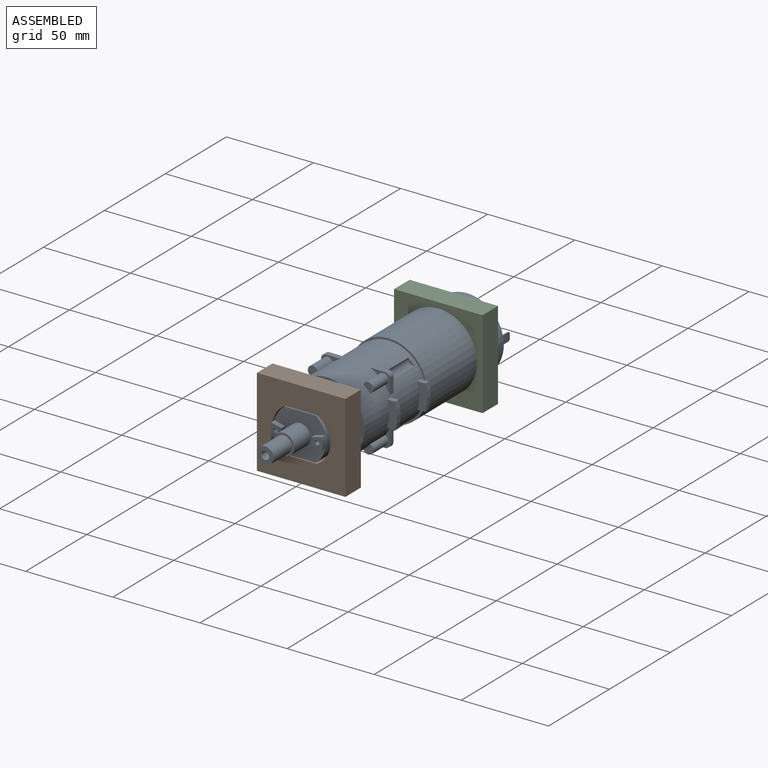
[diagram: assembled view]
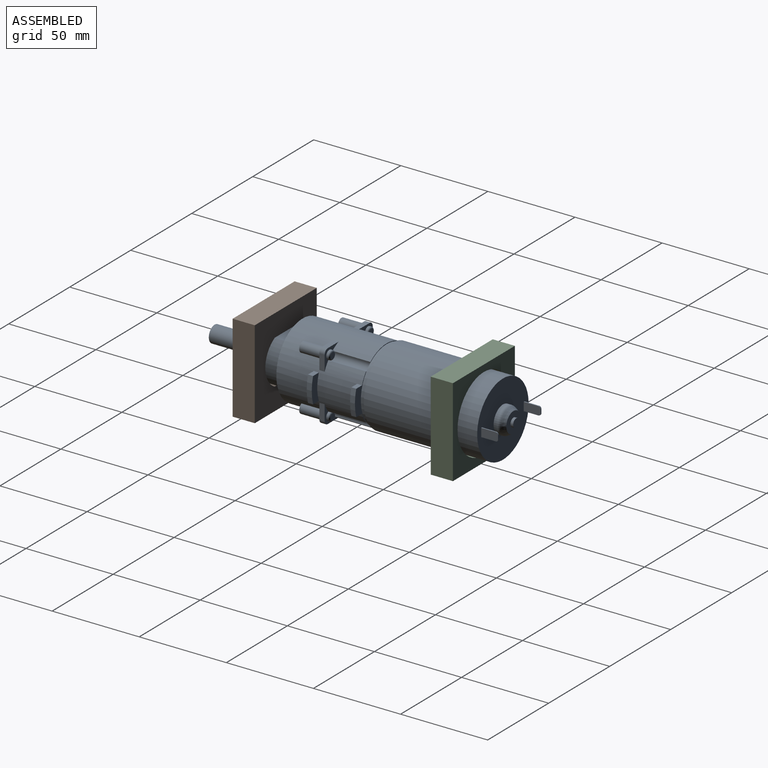
[diagram: assembled view, second angle]
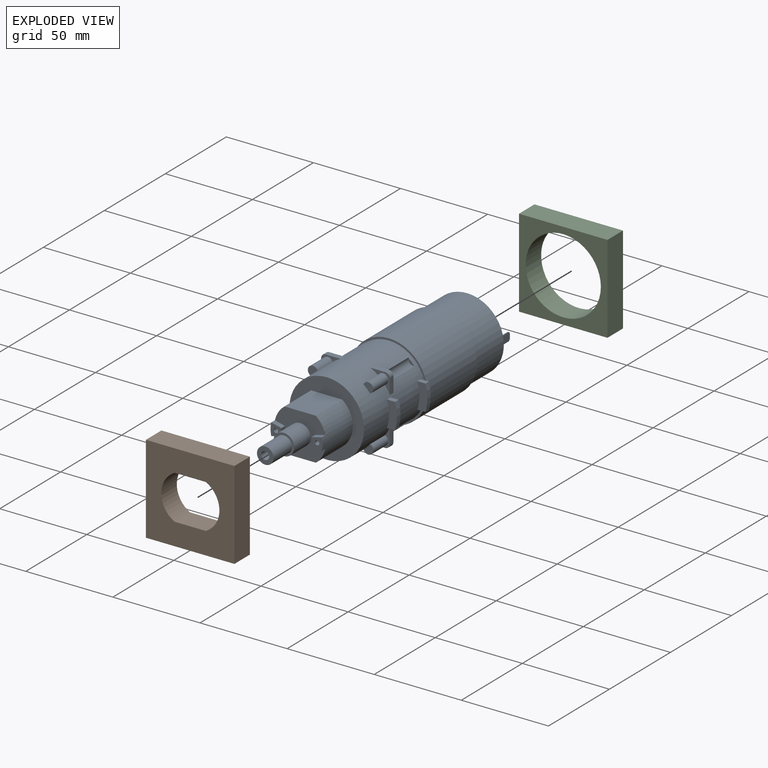
[diagram: exploded view]
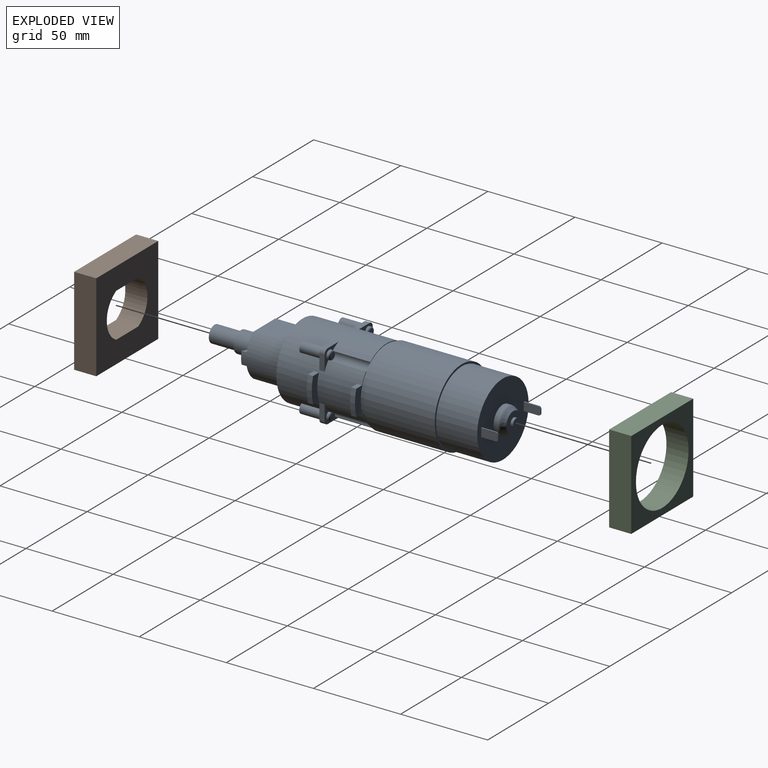
[diagram: exploded view, second angle]
ASSEMBLY  parts=3 mates=2
PART A: 124 faces, bbox 51.8x175.1x44.1 mm
  f0: plane 42.16x42.16mm, normal (0,1,0), area 1207.7mm2, adj f79,f85,f110,f111,f112,f113,f115,f116
  f1: plane 11.23x11.23mm, normal (0,1,0), area 31.5mm2, adj f7,f44,f45,f46,f96,f104
  f2: plane 11.23x11.23mm, normal (0,1,0), area 31.5mm2, adj f7,f41,f42,f43,f94,f102
  f3: plane 11.23x11.23mm, normal (0,1,0), area 31.5mm2, adj f7,f50,f51,f52,f92,f100
  f4: plane 11.23x11.23mm, normal (0,1,0), area 31.5mm2, adj f7,f47,f48,f49,f90,f98
  f5: plane 26.5x4.94mm, normal (0,1,0), area 9.8mm2, adj f7,f79,f94,f96
  f6: plane 26.5x9.43mm, normal (0,1,0), area 76.9mm2, adj f7,f71,f73,f74,f79,f90,f96
  f7: cylinder r=21.42mm len=48.26mm, axis (0,-1,0), area 5424.3mm2, adj f1,f2,f3,f4,f5,f6,f8,f9
  f8: plane 26.5x9.43mm, normal (0,1,0), area 76.9mm2, adj f7,f76,f77,f78,f79,f92,f94
  f9: plane 26.5x4.94mm, normal (0,1,0), area 9.8mm2, adj f7,f79,f90,f92
  f10: plane 11.72x11.72mm, normal (0,1,0), area 88.6mm2, adj f86,f88
  f11: plane 11.23x11.23mm, normal (0,-1,0), area 25.8mm2, adj f7,f41,f42,f43,f60
  f12: plane 11.23x11.23mm, normal (0,-1,0), area 25.8mm2, adj f7,f47,f48,f49,f58
  f13: plane 11.23x11.23mm, normal (0,-1,0), area 25.8mm2, adj f7,f50,f51,f52,f56
  f14: plane 11.23x11.23mm, normal (0,-1,0), area 25.8mm2, adj f7,f44,f45,f46,f54
  f15: plane 29.66x24.38mm, normal (0,-1,0), area 456.7mm2, adj f16,f17,f18,f19,f20,f22,f23,f24
  f16: cylinder r=6.03mm len=13.46mm, axis (0,-1,0), area 510.3mm2, adj f15,f36
  f17: cylinder r=15.49mm len=24.38mm, axis (0,-1,0), area 613.1mm2, adj f15,f18,f20,f21,f29
  f18: plane 21.84x17.98mm, normal (0,0,-1), area 392.8mm2, adj f15,f17,f19,f21
  f19: cylinder r=15.49mm len=24.38mm, axis (0,-1,0), area 613.1mm2, adj f15,f18,f20,f21,f24
  f20: plane 21.84x17.98mm, normal (0,0,1), area 392.8mm2, adj f15,f17,f19,f21
  f21: plane 42.85x42.85mm, normal (0,-1,0), area 801.9mm2, adj f7,f17,f18,f19,f20
  f22: cylinder r=8.89mm len=4.24mm, axis (0,1,0), area 12.6mm2, adj f15,f23,f25,f26
  f23: plane 5.86x2.95mm, normal (0.24,0,0.97), area 17.8mm2, adj f15,f22,f24,f26
  f24: cylinder r=14.93mm len=7.11mm, axis (0,1,0), area 21.2mm2, adj f15,f19,f23,f25,f26
  f25: plane 5.86x2.95mm, normal (0.24,0,-0.97), area 17.8mm2, adj f15,f22,f24,f26
  f26: plane 7.11x6.29mm, normal (0,-1,0), area 29.5mm2, adj f22,f23,f24,f25,f32
  f27: cylinder r=8.89mm len=4.24mm, axis (0,1,0), area 12.6mm2, adj f15,f28,f30,f31
  f28: plane 5.86x2.95mm, normal (-0.24,0,-0.97), area 17.8mm2, adj f15,f27,f29,f31
  f29: cylinder r=14.93mm len=7.11mm, axis (0,1,0), area 21.2mm2, adj f15,f17,f28,f30,f31
  f30: plane 5.86x2.95mm, normal (-0.24,0,0.97), area 17.8mm2, adj f15,f27,f29,f31
  f31: plane 7.11x6.29mm, normal (0,-1,0), area 29.5mm2, adj f27,f28,f29,f30,f34
  f32: cylinder r=1.27mm len=21.59mm, axis (0,-1,0), area 172.3mm2, adj f26,f33
  f33: plane 2.54x2.54mm, normal (0,-1,0), area 5.1mm2, adj f32
  f34: cylinder r=1.27mm len=21.59mm, axis (0,-1,0), area 172.3mm2, adj f31,f35
  f35: plane 2.54x2.54mm, normal (0,-1,0), area 5.1mm2, adj f34
  f36: plane 12.07x12.07mm, normal (0,-1,0), area 43.1mm2, adj f16,f37
  f37: cylinder r=4.76mm len=15.11mm, axis (0,1,0), area 452.2mm2, adj f36,f38
  f38: plane 9.53x9.53mm, normal (0,-1,0), area 54.8mm2, adj f37,f39
  f39: cylinder r=2.29mm len=21.59mm, axis (0,-1,0), area 310.1mm2, adj f38,f40
  f40: plane 4.57x4.57mm, normal (0,-1,0), area 16.4mm2, adj f39
  f41: cylinder r=2.54mm len=3.05mm, axis (0,-1,0), area 12.2mm2, adj f2,f11,f42,f43
  f42: plane 8.69x3.05mm, normal (0,0,-1), area 26.5mm2, adj f2,f7,f11,f41
  f43: plane 8.69x3.05mm, normal (1,0,0), area 26.5mm2, adj f2,f7,f11,f41
  f44: cylinder r=2.54mm len=3.05mm, axis (0,-1,0), area 12.2mm2, adj f1,f14,f45,f46
  f45: plane 8.69x3.05mm, normal (-1,0,0), area 26.5mm2, adj f1,f7,f14,f44
  f46: plane 8.69x3.05mm, normal (0,0,-1), area 26.5mm2, adj f1,f7,f14,f44
  f47: cylinder r=2.54mm len=3.05mm, axis (0,-1,0), area 12.2mm2, adj f4,f12,f48,f49
  f48: plane 8.69x3.05mm, normal (-1,0,0), area 26.5mm2, adj f4,f7,f12,f47
  f49: plane 8.69x3.05mm, normal (0,0,1), area 26.5mm2, adj f4,f7,f12,f47
  f50: plane 8.69x3.05mm, normal (0,0,1), area 26.5mm2, adj f3,f7,f13,f52
  f51: plane 8.69x3.05mm, normal (1,0,0), area 26.5mm2, adj f3,f7,f13,f52
  f52: cylinder r=2.54mm len=3.05mm, axis (0,-1,0), area 12.2mm2, adj f3,f13,f50,f51
  f53: plane 5.65x5.65mm, normal (0,-1,0), area 19.6mm2, adj f7,f54
  f54: cylinder r=2.92mm len=12.19mm, axis (0,1,0), area 141.8mm2, adj f7,f14,f53
  f55: plane 5.65x5.65mm, normal (0,-1,0), area 19.6mm2, adj f7,f56
  f56: cylinder r=2.92mm len=12.19mm, axis (0,1,0), area 141.8mm2, adj f7,f13,f55
  f57: plane 5.65x5.65mm, normal (0,-1,0), area 19.6mm2, adj f7,f58
  f58: cylinder r=2.92mm len=12.19mm, axis (0,1,0), area 141.8mm2, adj f7,f12,f57
  f59: plane 5.65x5.65mm, normal (0,-1,0), area 19.6mm2, adj f7,f60
  f60: cylinder r=2.92mm len=12.19mm, axis (0,1,0), area 141.8mm2, adj f7,f11,f59
  f61: cylinder r=25.91mm len=14.73mm, axis (0,1,0), area 43.6mm2, adj f62,f63,f64,f65
  f62: plane 14.73x5.79mm, normal (0,-1,0), area 67.2mm2, adj f7,f61,f64,f65
  f63: plane 14.73x5.79mm, normal (0,1,0), area 67.2mm2, adj f7,f61,f64,f65
  f64: plane 4.72x2.92mm, normal (0,0,1), area 13.8mm2, adj f7,f61,f62,f63
  f65: plane 4.72x2.92mm, normal (0,0,-1), area 13.8mm2, adj f7,f61,f62,f63
  f66: plane 4.72x2.92mm, normal (0,0,-1), area 13.8mm2, adj f7,f68,f69,f70
  f67: plane 4.72x2.92mm, normal (0,0,1), area 13.8mm2, adj f7,f68,f69,f70
  f68: plane 14.73x5.79mm, normal (0,-1,0), area 67.2mm2, adj f7,f66,f67,f70
  f69: plane 14.73x5.79mm, normal (0,1,0), area 67.2mm2, adj f7,f66,f67,f70
  f70: cylinder r=25.91mm len=14.73mm, axis (0,1,0), area 43.6mm2, adj f66,f67,f68,f69
  f71: cylinder r=25.91mm len=14.73mm, axis (0,1,0), area 41.7mm2, adj f6,f72,f73,f74
  f72: plane 14.73x5.79mm, normal (0,-1,0), area 67.2mm2, adj f7,f71,f73,f74
  f73: plane 4.72x2.79mm, normal (0,0,-1), area 13.2mm2, adj f6,f7,f71,f72
  f74: plane 4.72x2.79mm, normal (0,0,1), area 13.2mm2, adj f6,f7,f71,f72
  f75: plane 14.73x5.79mm, normal (0,-1,0), area 67.2mm2, adj f7,f76,f77,f78
  f76: plane 4.72x2.79mm, normal (0,0,1), area 13.2mm2, adj f7,f8,f75,f78
  f77: plane 4.72x2.79mm, normal (0,0,-1), area 13.2mm2, adj f7,f8,f75,f78
  f78: cylinder r=25.91mm len=14.73mm, axis (0,1,0), area 41.7mm2, adj f8,f75,f76,f77
  f79: cylinder r=21.08mm len=66.8mm, axis (0,-1,0), area 3776.9mm2, adj f0,f5,f6,f8,f9,f80,f81,f82
  f80: plane 40.64x1.16mm, normal (1,0,0), area 47.2mm2, adj f79,f82,f83,f84
  f81: plane 40.64x1.16mm, normal (-1,0,0), area 47.2mm2, adj f79,f82,f83,f84
  f82: plane 44.45x44.12mm, normal (0,1,0), area 146.8mm2, adj f79,f80,f81,f84
  f83: plane 44.45x44.12mm, normal (0,-1,0), area 146.8mm2, adj f79,f80,f81,f84
  f84: cylinder r=22.23mm len=44.45mm, axis (0,-1,0), area 5363.9mm2, adj f80,f81,f82,f83
  f85: cylinder r=7.62mm len=15.24mm, axis (0,-1,0), area 113.3mm2, adj f0,f87
  f86: cone r=5.86mm half-angle=30deg, axis (0,-1,0), area 117.2mm2, adj f10,f87
  f87: torus R=5.08mm, axis (0,1,0), area 62.7mm2, adj f85,f86
  f88: cylinder r=2.48mm len=4.95mm, axis (0,-1,0), area 23.7mm2, adj f10,f89
  f89: plane 4.95x4.95mm, normal (0,1,0), area 19.3mm2, adj f88
  f90: cylinder r=2.79mm len=21.72mm, axis (0,-1,0), area 137.9mm2, adj f4,f6,f7,f9,f91
  f91: plane 3.4x3.4mm, normal (0,-1,0), area 4.7mm2, adj f79,f90
  f92: cylinder r=2.79mm len=21.72mm, axis (0,-1,0), area 137.9mm2, adj f3,f7,f8,f9,f93
  f93: plane 3.4x3.4mm, normal (0,-1,0), area 4.7mm2, adj f79,f92
  f94: cylinder r=2.79mm len=21.72mm, axis (0,-1,0), area 137.9mm2, adj f2,f5,f7,f8,f95
  f95: plane 3.4x3.4mm, normal (0,-1,0), area 4.7mm2, adj f79,f94
  f96: cylinder r=2.79mm len=21.72mm, axis (0,-1,0), area 137.9mm2, adj f1,f5,f6,f7,f97
  f97: plane 3.4x3.4mm, normal (0,-1,0), area 4.7mm2, adj f79,f96
  f98: cylinder r=2.54mm len=5.08mm, axis (0,-1,0), area 18.2mm2, adj f4,f109
  f99: plane 3.56x3.56mm, normal (0,1,0), area 9.9mm2, adj f109
  f100: cylinder r=2.54mm len=5.08mm, axis (0,-1,0), area 18.2mm2, adj f3,f107
  f101: plane 3.56x3.56mm, normal (0,1,0), area 9.9mm2, adj f107
  f102: cylinder r=2.54mm len=5.08mm, axis (0,-1,0), area 18.2mm2, adj f2,f106
  f103: plane 3.56x3.56mm, normal (0,1,0), area 9.9mm2, adj f106
  f104: cylinder r=2.54mm len=5.08mm, axis (0,-1,0), area 18.2mm2, adj f1,f108
  f105: plane 3.56x3.56mm, normal (0,1,0), area 9.9mm2, adj f108
  f106: torus R=1.78mm, axis (0,1,0), area 17mm2, adj f102,f103
  f107: torus R=1.78mm, axis (0,1,0), area 17mm2, adj f100,f101
  f108: torus R=1.78mm, axis (0,1,0), area 17mm2, adj f104,f105
  f109: torus R=1.78mm, axis (0,1,0), area 17mm2, adj f98,f99
  f110: plane 9.65x4.83mm, normal (1,0,0), area 45.9mm2, adj f0,f111,f113,f114,f120,f121
  f111: plane 8.38x0.64mm, normal (0,0,-1), area 5.3mm2, adj f0,f110,f112,f120
  f112: plane 9.65x4.83mm, normal (-1,0,0), area 45.9mm2, adj f0,f111,f113,f114,f120,f121
  f113: plane 8.38x0.64mm, normal (0,0,1), area 5.3mm2, adj f0,f110,f112,f121
  f114: plane 2.29x0.64mm, normal (0,1,0), area 1.5mm2, adj f110,f112,f120,f121
  f115: plane 9.65x4.83mm, normal (1,0,0), area 45.9mm2, adj f0,f116,f118,f119,f122,f123
  f116: plane 8.38x0.64mm, normal (0,0,-1), area 5.3mm2, adj f0,f115,f117,f122
  f117: plane 9.65x4.83mm, normal (-1,0,0), area 45.9mm2, adj f0,f116,f118,f119,f122,f123
  f118: plane 8.38x0.64mm, normal (0,0,1), area 5.3mm2, adj f0,f115,f117,f123
  f119: plane 2.29x0.64mm, normal (0,1,0), area 1.5mm2, adj f115,f117,f122,f123
  f120: cylinder r=1.27mm len=1.27mm, axis (1,0,0), area 1.3mm2, adj f110,f111,f112,f114
  f121: cylinder r=1.27mm len=1.27mm, axis (-1,0,0), area 1.3mm2, adj f110,f112,f113,f114
  f122: cylinder r=1.27mm len=1.27mm, axis (1,0,0), area 1.3mm2, adj f115,f116,f117,f119
  f123: cylinder r=1.27mm len=1.27mm, axis (-1,0,0), area 1.3mm2, adj f115,f117,f118,f119
PART B: 10 faces, bbox 12.7x50.8x50.8 mm
  f0: cylinder r=14.25mm len=25.4mm, axis (-1,0,0), area 398.2mm2, adj f1,f7,f8,f9
  f1: plane 17.98x12.7mm, normal (0,0,1), area 228.4mm2, adj f0,f2,f8,f9
  f2: cylinder r=14.42mm len=25.4mm, axis (-1,0,0), area 394.7mm2, adj f1,f7,f8,f9
  f3: plane 50.8x12.7mm, normal (0,0,1), area 645.2mm2, adj f4,f6,f8,f9
  f4: plane 50.8x12.7mm, normal (0,-1,0), area 645.2mm2, adj f3,f5,f8,f9
  f5: plane 50.8x12.7mm, normal (0,0,-1), area 645.2mm2, adj f4,f6,f8,f9
  f6: plane 50.8x12.7mm, normal (0,1,0), area 645.2mm2, adj f3,f5,f8,f9
  f7: plane 17.98x12.7mm, normal (0,0,-1), area 228.4mm2, adj f0,f2,f8,f9
  f8: plane 50.8x50.8mm, normal (1,0,0), area 1845.3mm2, adj f0,f1,f2,f3,f4,f5,f6,f7
  f9: plane 50.8x50.8mm, normal (-1,0,0), area 1845.3mm2, adj f0,f1,f2,f3,f4,f5,f6,f7
PART C: 7 faces, bbox 12.7x50.8x50.8 mm
  f0: plane 50.8x12.7mm, normal (0,1,0), area 645.2mm2, adj f1,f4,f5,f6
  f1: plane 50.8x12.7mm, normal (0,0,1), area 645.2mm2, adj f0,f2,f5,f6
  f2: plane 50.8x12.7mm, normal (0,-1,0), area 645.2mm2, adj f1,f4,f5,f6
  f3: cylinder r=21.59mm len=43.18mm, axis (-1,0,0), area 1722.8mm2, adj f5,f6
  f4: plane 50.8x12.7mm, normal (0,0,-1), area 645.2mm2, adj f0,f2,f5,f6
  f5: plane 50.8x50.8mm, normal (1,0,0), area 1116.3mm2, adj f0,f1,f2,f3,f4
  f6: plane 50.8x50.8mm, normal (-1,0,0), area 1116.3mm2, adj f0,f1,f2,f3,f4
PLACE A t=(-46.86,-57.35,-75.12)mm
PLACE B rot(axis=(0,0,-1),90deg) t=(-177.89,-38.3,-115.84)mm
PLACE C rot(axis=(0,0,-1),90deg) t=(33.77,74.99,-108.63)mm
MATE fastened C.f3 <-> A.f7  axis (0,-1,0) through (-46.86,62.29,-75.12)mm
MATE fastened B.f8 <-> A.f19  axis (0,-1,0) through (-46.29,-51,-75.12)mm
